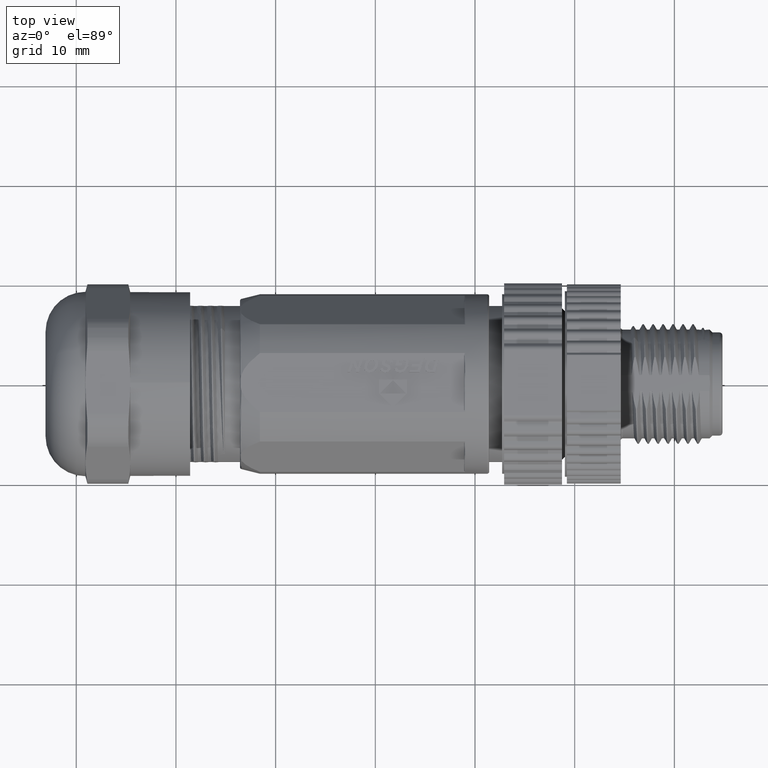
[diagram: clean part render]
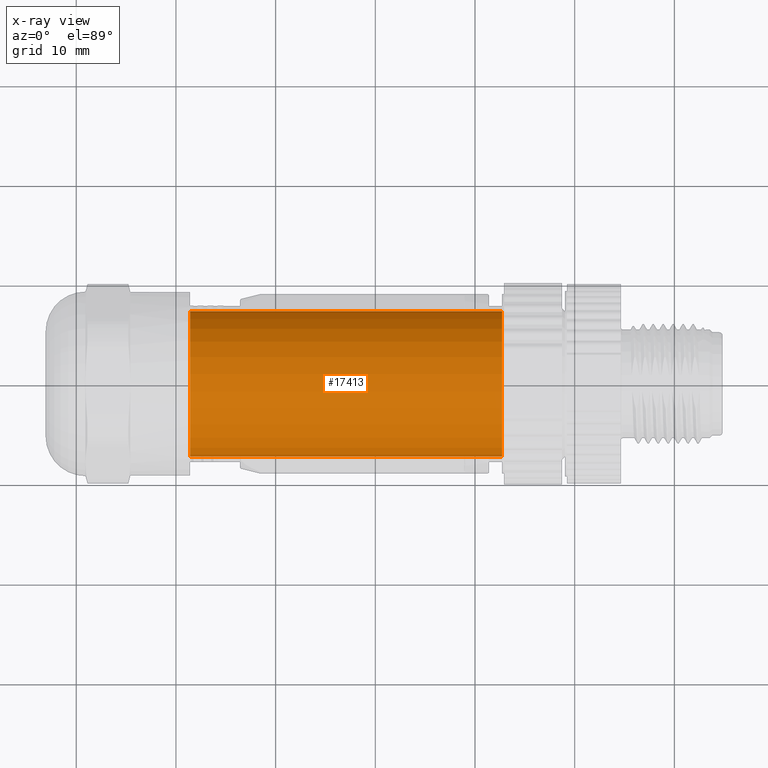
[diagram: x-ray — body ghosted, one internal face saturated and labeled with its STEP entity id]
A machine part, top view, then the same camera in x-ray: the body is ghosted and one INTERNAL B-rep face — a face not visible from any outside direction — is saturated and labeled: STEP entity #17413.
In plain terms, the highlighted cylindrical surface (partial cylindrical patch) has radius 7.3 mm, axis along (-1, 0, 0).
Its self-contained STEP definition (entity closure, byte-faithful):
#4626=CARTESIAN_POINT('',(2.721568741490E0,0.E0,0.E0));
#4627=DIRECTION('',(1.E0,0.E0,0.E0));
#4628=DIRECTION('',(0.E0,1.E0,0.E0));
#4629=AXIS2_PLACEMENT_3D('',#4626,#4627,#4628);
#4631=CARTESIAN_POINT('',(-2.857843125851E1,0.E0,0.E0));
#4632=DIRECTION('',(1.E0,0.E0,0.E0));
#4633=DIRECTION('',(0.E0,1.E0,0.E0));
#4634=AXIS2_PLACEMENT_3D('',#4631,#4632,#4633);
#4636=DIRECTION('',(-1.E0,0.E0,0.E0));
#4637=VECTOR('',#4636,3.13E1);
#4638=CARTESIAN_POINT('',(2.721568741490E0,7.3E0,0.E0));
#4639=LINE('',#4638,#4637);
#4650=DIRECTION('',(-1.E0,0.E0,0.E0));
#4651=VECTOR('',#4650,3.13E1);
#4652=CARTESIAN_POINT('',(2.721568741490E0,-7.3E0,0.E0));
#4653=LINE('',#4652,#4651);
#11555=CARTESIAN_POINT('',(-2.857843125851E1,7.3E0,0.E0));
#11556=CARTESIAN_POINT('',(-2.857843125851E1,-7.3E0,0.E0));
#11557=VERTEX_POINT('',#11555);
#11558=VERTEX_POINT('',#11556);
#11559=CARTESIAN_POINT('',(2.721568741490E0,7.3E0,0.E0));
#11560=CARTESIAN_POINT('',(2.721568741490E0,-7.3E0,0.E0));
#11561=VERTEX_POINT('',#11559);
#11562=VERTEX_POINT('',#11560);
#17399=CARTESIAN_POINT('',(9.758620029722E0,0.E0,0.E0));
#17400=DIRECTION('',(-1.E0,0.E0,0.E0));
#17401=DIRECTION('',(0.E0,1.E0,0.E0));
#17402=AXIS2_PLACEMENT_3D('',#17399,#17400,#17401);
#17403=CYLINDRICAL_SURFACE('',#17402,7.3E0);
#17404=ORIENTED_EDGE('',*,*,#17392,.T.);
#17406=ORIENTED_EDGE('',*,*,#17405,.T.);
#17408=ORIENTED_EDGE('',*,*,#17407,.F.);
#17410=ORIENTED_EDGE('',*,*,#17409,.F.);
#17411=EDGE_LOOP('',(#17404,#17406,#17408,#17410));
#17412=FACE_OUTER_BOUND('',#17411,.F.);
#17413=ADVANCED_FACE('',(#17412),#17403,.T.);
#4630=CIRCLE('',#4629,7.3E0);
#4635=CIRCLE('',#4634,7.3E0);
#17392=EDGE_CURVE('',#11561,#11562,#4630,.T.);
#17405=EDGE_CURVE('',#11562,#11558,#4653,.T.);
#17407=EDGE_CURVE('',#11557,#11558,#4635,.T.);
#17409=EDGE_CURVE('',#11561,#11557,#4639,.T.);